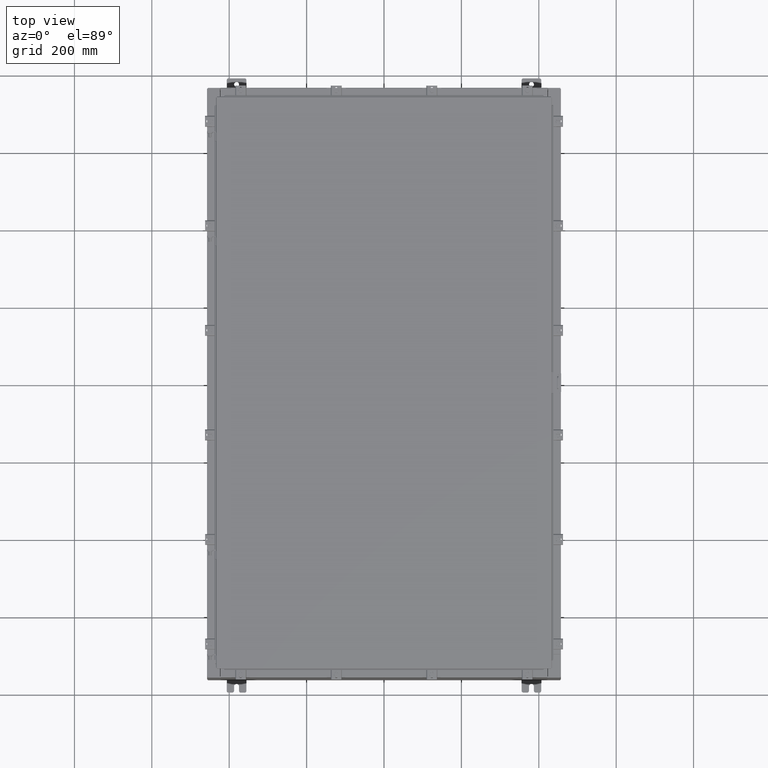
[diagram: clean part render]
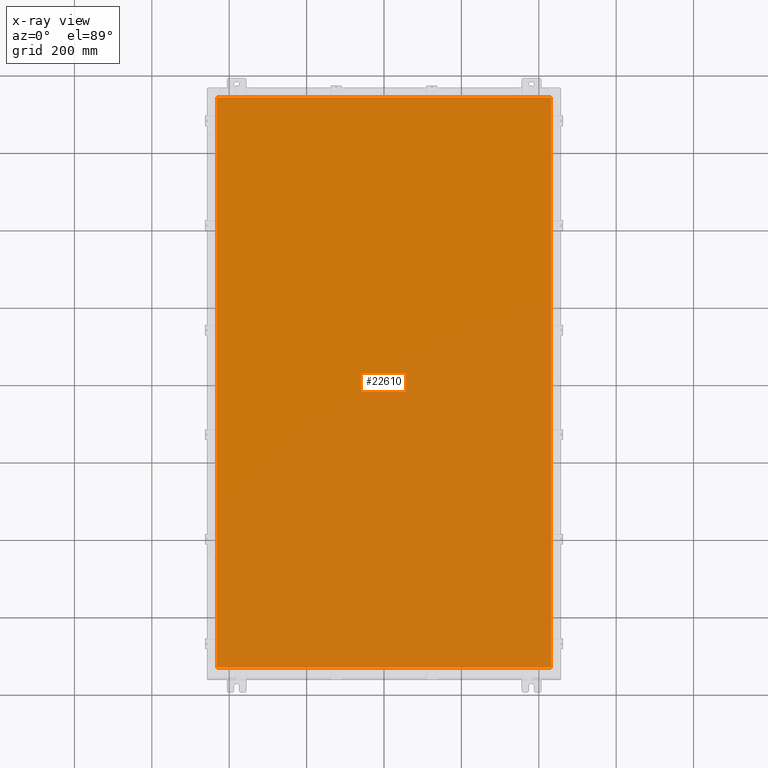
[diagram: x-ray — body ghosted, one internal face saturated and labeled with its STEP entity id]
A machine part, top view, then the same camera in x-ray: the body is ghosted and one INTERNAL B-rep face — a face not visible from any outside direction — is saturated and labeled: STEP entity #22610.
In plain terms, the highlighted planar face has unit normal (0, 0, -1).
Its self-contained STEP definition (entity closure, byte-faithful):
#332 = LINE ( 'NONE', #15603, #994 ) ;
#520 = DIRECTION ( 'NONE',  ( 1.000000000000000000, -0.0000000000000000000, -0.0000000000000000000 ) ) ;
#694 = EDGE_CURVE ( 'NONE', #1606, #6039, #9121, .T. ) ;
#994 = VECTOR ( 'NONE', #2870, 39.37007874015748100 ) ;
#1606 = VERTEX_POINT ( 'NONE', #8003 ) ;
#1712 = CARTESIAN_POINT ( 'NONE',  ( 16.99030000000000500, 29.00630000000000000, -0.07470000000000000300 ) ) ;
#2870 = DIRECTION ( 'NONE',  ( 0.0000000000000000000, -1.000000000000000000, 0.0000000000000000000 ) ) ;
#4876 = CARTESIAN_POINT ( 'NONE',  ( -16.99029999999999400, -29.00630000000000700, -0.07469999999999804600 ) ) ;
#5664 = EDGE_LOOP ( 'NONE', ( #11695, #9364, #13240, #5778 ) ) ;
#5778 = ORIENTED_EDGE ( 'NONE', *, *, #7390, .F. ) ;
#6039 = VERTEX_POINT ( 'NONE', #19520 ) ;
#6419 = FACE_OUTER_BOUND ( 'NONE', #5664, .T. ) ;
#7390 = EDGE_CURVE ( 'NONE', #26667, #26202, #27533, .T. ) ;
#8003 = CARTESIAN_POINT ( 'NONE',  ( -16.99029999999999800, -29.00630000000000300, -0.07470000000000000300 ) ) ;
#8556 = PLANE ( 'NONE',  #19194 ) ;
#9121 = LINE ( 'NONE', #4876, #25501 ) ;
#9364 = ORIENTED_EDGE ( 'NONE', *, *, #694, .F. ) ;
#9626 = CARTESIAN_POINT ( 'NONE',  ( 16.99030000000000100, 29.00630000000000300, -0.07469999999999804600 ) ) ;
#10713 = DIRECTION ( 'NONE',  ( -1.000000000000000000, 0.0000000000000000000, -0.0000000000000000000 ) ) ;
#11695 = ORIENTED_EDGE ( 'NONE', *, *, #22275, .F. ) ;
#13240 = ORIENTED_EDGE ( 'NONE', *, *, #14439, .F. ) ;
#14439 = EDGE_CURVE ( 'NONE', #26202, #1606, #332, .T. ) ;
#15603 = CARTESIAN_POINT ( 'NONE',  ( -16.99029999999999800, 29.00629999999998900, -0.07470000000000019700 ) ) ;
#16187 = VECTOR ( 'NONE', #22523, 39.37007874015748100 ) ;
#17053 = CARTESIAN_POINT ( 'NONE',  ( 0.0000000000000000000, 0.0000000000000000000, -0.07470000000000000300 ) ) ;
#19194 = AXIS2_PLACEMENT_3D ( 'NONE', #17053, #23498, #10713 ) ;
#19507 = CARTESIAN_POINT ( 'NONE',  ( -16.99029999999999800, 29.00630000000000000, -0.07470000000000000300 ) ) ;
#19520 = CARTESIAN_POINT ( 'NONE',  ( 16.99030000000000500, -29.00630000000000300, -0.07470000000000000300 ) ) ;
#20826 = LINE ( 'NONE', #24614, #24464 ) ;
#22275 = EDGE_CURVE ( 'NONE', #6039, #26667, #20826, .T. ) ;
#22523 = DIRECTION ( 'NONE',  ( -1.000000000000000000, -0.0000000000000000000, -0.0000000000000000000 ) ) ;
#22610 = ADVANCED_FACE ( 'NONE', ( #6419 ), #8556, .T. ) ;
#23498 = DIRECTION ( 'NONE',  ( 0.0000000000000000000, 0.0000000000000000000, -1.000000000000000000 ) ) ;
#24464 = VECTOR ( 'NONE', #26731, 39.37007874015748100 ) ;
#24614 = CARTESIAN_POINT ( 'NONE',  ( 16.99030000000000500, -29.00630000000000000, -0.07470000000000019700 ) ) ;
#25501 = VECTOR ( 'NONE', #520, 39.37007874015748100 ) ;
#26202 = VERTEX_POINT ( 'NONE', #19507 ) ;
#26667 = VERTEX_POINT ( 'NONE', #1712 ) ;
#26731 = DIRECTION ( 'NONE',  ( 0.0000000000000000000, 1.000000000000000000, 0.0000000000000000000 ) ) ;
#27533 = LINE ( 'NONE', #9626, #16187 ) ;